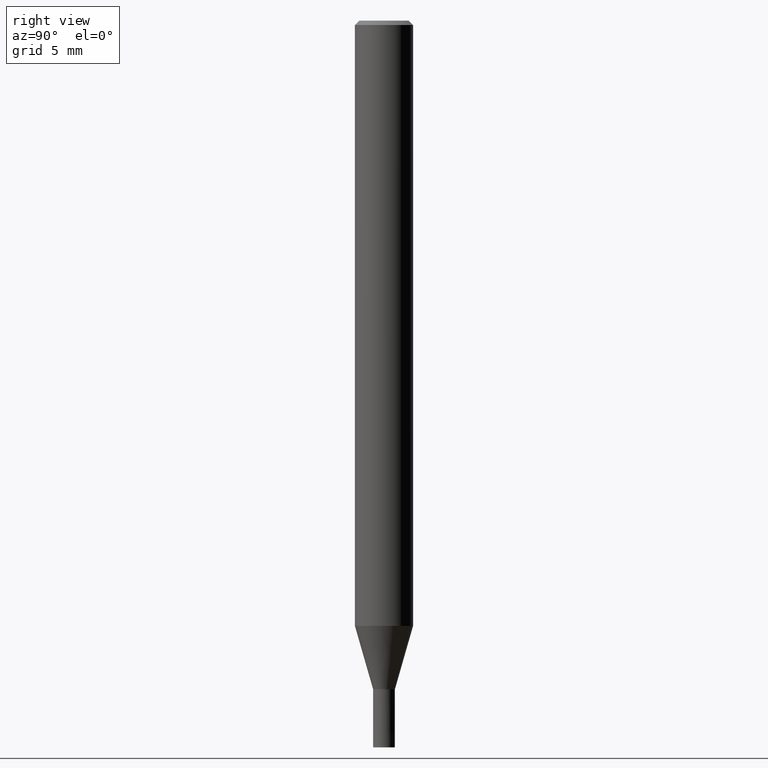
[diagram: clean part render]
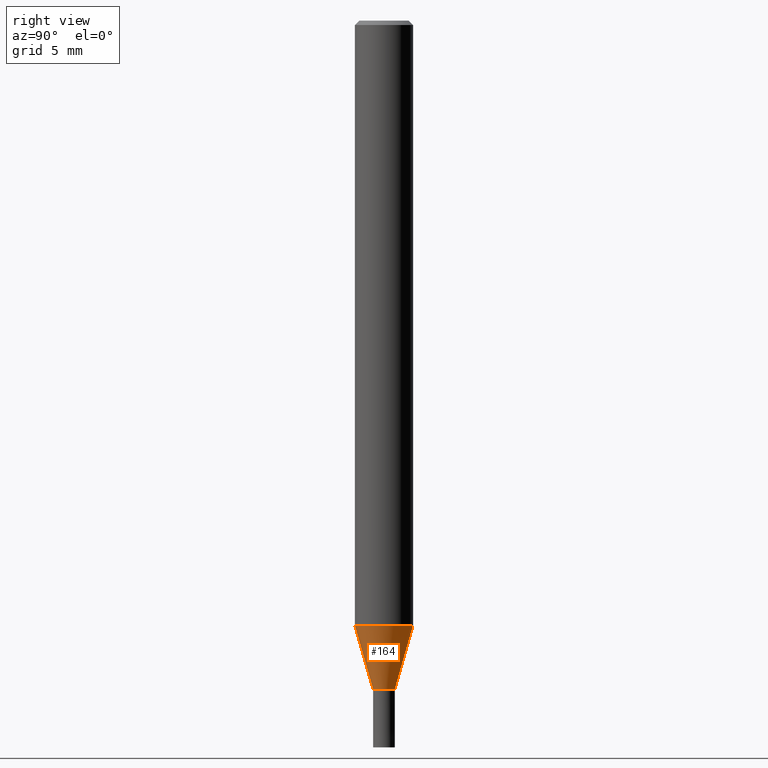
[diagram: same view with one face highlighted and labeled with its STEP entity id]
A machine part, right view. The second image highlights one B-rep face of the part: STEP entity #164.
In plain terms, the highlighted conical surface has half-angle 16.001 deg.
Its self-contained STEP definition (entity closure, byte-faithful):
#84=VERTEX_POINT('',#205);
#86=EDGE_CURVE('',#106,#84,#207,.T.);
#106=VERTEX_POINT('',#230);
#114=VERTEX_POINT('',#240);
#136=EDGE_CURVE('',#114,#106,#264,.T.);
#152=EDGE_CURVE('',#174,#114,#283,.T.);
#164=ADVANCED_FACE('',(#295),#296,.T.);
#166=EDGE_CURVE('',#174,#84,#298,.T.);
#174=VERTEX_POINT('',#306);
#205=CARTESIAN_POINT('',(2.44915147732706E-016,-1.99995,-41.641));
#207=LINE('',#335,#336);
#230=CARTESIAN_POINT('',(9.18393535049092E-017,-0.74995,-46.0));
#240=CARTESIAN_POINT('',(0.0,0.74995,-46.0));
#264=CIRCLE('',#402,0.74995);
#283=LINE('',#427,#428);
#295=FACE_OUTER_BOUND('',#446,.T.);
#296=CONICAL_SURFACE('',#447,1.37495,0.279268973819818);
#298=CIRCLE('',#450,1.99995);
#306=CARTESIAN_POINT('',(0.0,1.99995,-41.641));
#335=CARTESIAN_POINT('',(1.68377250618808E-016,-1.37495,-43.8205));
#336=VECTOR('',#476,1.0);
#402=AXIS2_PLACEMENT_3D('',#545,#546,#547);
#427=CARTESIAN_POINT('',(-1.68377250618808E-016,1.37495,-43.8205));
#428=VECTOR('',#575,1.0);
#446=EDGE_LOOP('',(#585,#586,#587,#588));
#447=AXIS2_PLACEMENT_3D('',#589,#590,#591);
#450=AXIS2_PLACEMENT_3D('',#592,#593,#594);
#476=DIRECTION('',(3.375664374138E-017,-0.27565301809855,0.961257204713265));
#545=CARTESIAN_POINT('',(0.0,0.0,-46.0));
#546=DIRECTION('',(0.0,0.0,-1.0));
#547=DIRECTION('',(0.0,1.0,0.0));
#575=DIRECTION('',(3.375664374138E-017,-0.27565301809855,-0.961257204713265));
#585=ORIENTED_EDGE('',*,*,#152,.F.);
#586=ORIENTED_EDGE('',*,*,#166,.T.);
#587=ORIENTED_EDGE('',*,*,#86,.F.);
#588=ORIENTED_EDGE('',*,*,#136,.F.);
#589=CARTESIAN_POINT('',(0.0,0.0,-43.8205));
#590=DIRECTION('',(-0.0,-0.0,1.0));
#591=DIRECTION('',(0.0,1.0,0.0));
#592=CARTESIAN_POINT('',(0.0,0.0,-41.641));
#593=DIRECTION('',(0.0,0.0,-1.0));
#594=DIRECTION('',(0.0,1.0,0.0));